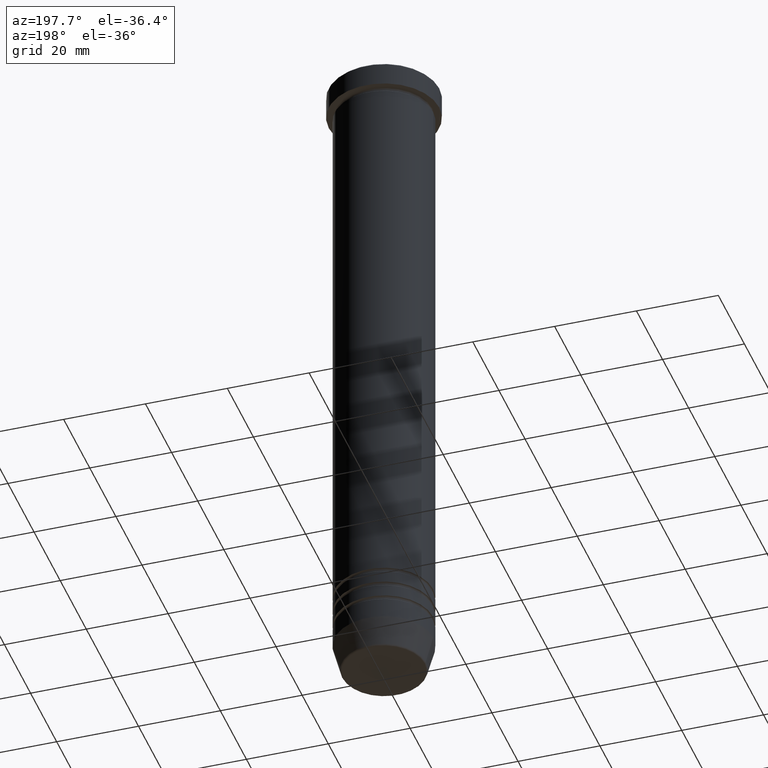
[diagram: clean part render]
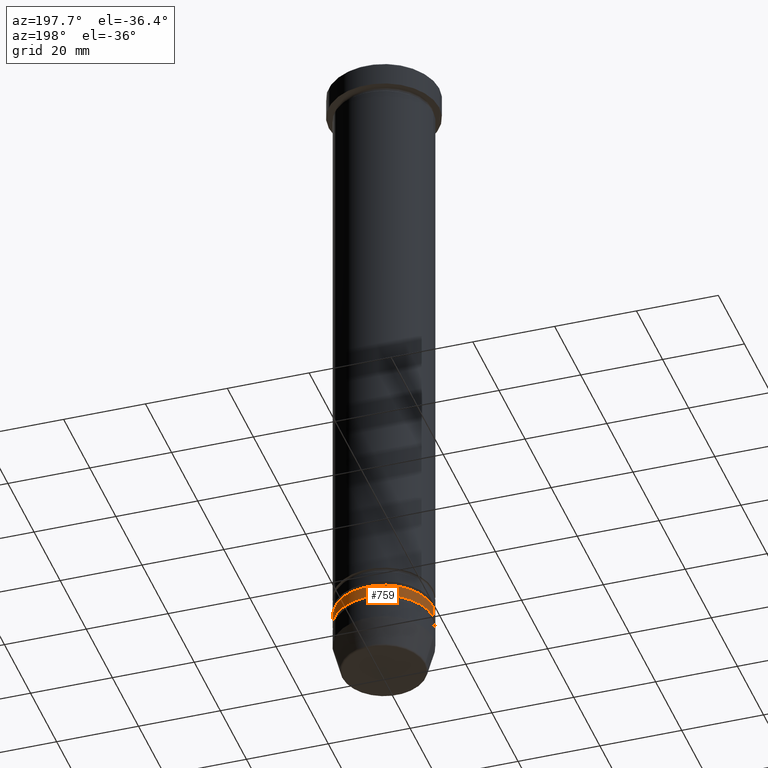
[diagram: same view with one face highlighted and labeled with its STEP entity id]
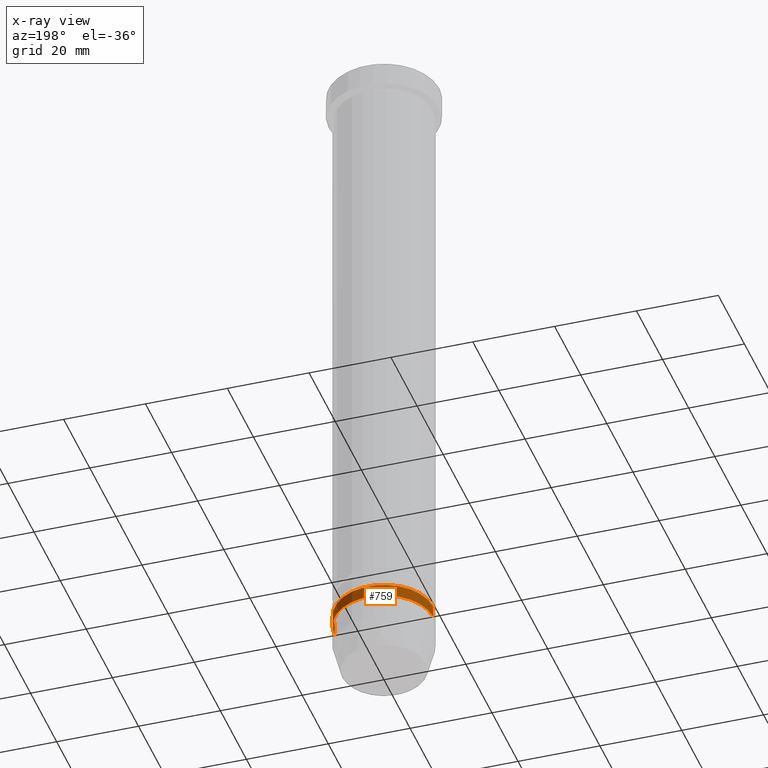
[diagram: x-ray of the same camera — body ghosted, the highlighted face saturated]
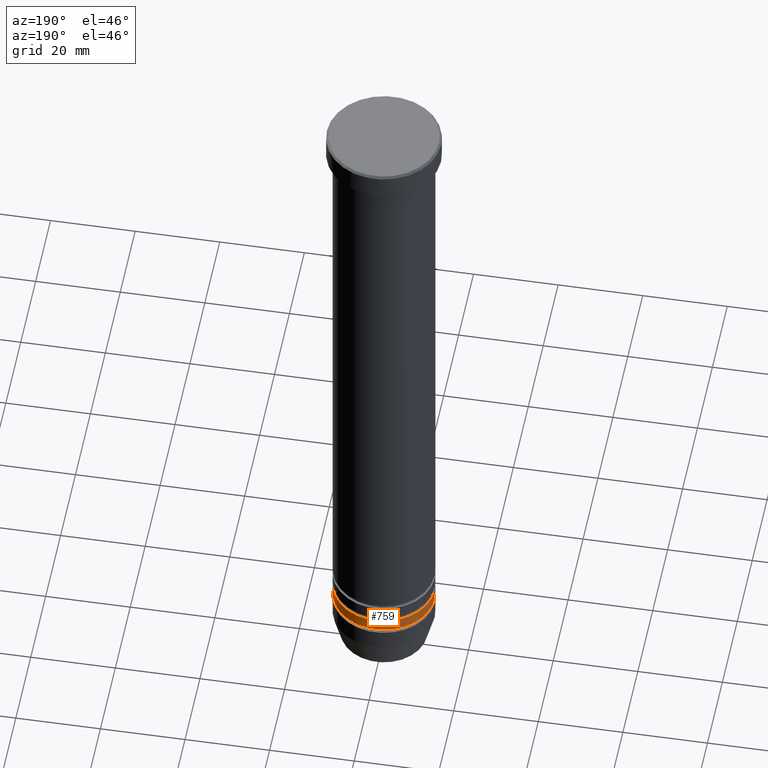
[diagram: same view with one face highlighted and labeled with its STEP entity id]
A machine part, auxiliary view. The second image highlights one B-rep face of the part: STEP entity #759.
The next image is the same camera in x-ray: the body ghosted, the highlighted face saturated — about 0% of this face is hidden behind the body in this view.
A second angle (auxiliary view) of the same face is appended — the face is thin or edge-on in the first view.
In plain terms, the highlighted cylindrical surface (partial cylindrical patch) has radius 12 mm, axis along (-0, -0, 1).
Its self-contained STEP definition (entity closure, byte-faithful):
#27 = CIRCLE ( 'NONE', #474, 12.00000000000000178 ) ;
#45 = CARTESIAN_POINT ( 'NONE',  ( 0.000000000000000000, 0.000000000000000000, -153.0000000000000284 ) ) ;
#46 = VECTOR ( 'NONE', #134, 1000.000000000000000 ) ;
#84 = VERTEX_POINT ( 'NONE', #514 ) ;
#90 = EDGE_CURVE ( 'NONE', #481, #84, #793, .T. ) ;
#134 = DIRECTION ( 'NONE',  ( -0.000000000000000000, -0.000000000000000000, 1.000000000000000000 ) ) ;
#210 = DIRECTION ( 'NONE',  ( -0.000000000000000000, -0.000000000000000000, 1.000000000000000000 ) ) ;
#251 = ORIENTED_EDGE ( 'NONE', *, *, #789, .F. ) ;
#269 = CARTESIAN_POINT ( 'NONE',  ( 0.000000000000000000, 0.000000000000000000, -150.0000000000000284 ) ) ;
#296 = EDGE_LOOP ( 'NONE', ( #556, #777, #491, #251 ) ) ;
#305 = AXIS2_PLACEMENT_3D ( 'NONE', #45, #413, #1115 ) ;
#307 = VERTEX_POINT ( 'NONE', #1000 ) ;
#317 = LINE ( 'NONE', #586, #46 ) ;
#337 = VERTEX_POINT ( 'NONE', #1120 ) ;
#377 = CARTESIAN_POINT ( 'NONE',  ( 0.000000000000000000, 0.000000000000000000, 0.000000000000000000 ) ) ;
#413 = DIRECTION ( 'NONE',  ( -0.000000000000000000, -0.000000000000000000, 1.000000000000000000 ) ) ;
#428 = DIRECTION ( 'NONE',  ( 1.000000000000000000, 0.000000000000000000, 0.000000000000000000 ) ) ;
#474 = AXIS2_PLACEMENT_3D ( 'NONE', #269, #961, #428 ) ;
#478 = DIRECTION ( 'NONE',  ( 1.000000000000000000, 0.000000000000000000, 0.000000000000000000 ) ) ;
#481 = VERTEX_POINT ( 'NONE', #579 ) ;
#491 = ORIENTED_EDGE ( 'NONE', *, *, #498, .F. ) ;
#498 = EDGE_CURVE ( 'NONE', #337, #307, #27, .T. ) ;
#514 = CARTESIAN_POINT ( 'NONE',  ( -11.99999999999999467, 1.469576158976823553E-15, -153.0000000000000284 ) ) ;
#519 = CARTESIAN_POINT ( 'NONE',  ( -11.99999999999999822, 1.469576158976823750E-15, 0.000000000000000000 ) ) ;
#556 = ORIENTED_EDGE ( 'NONE', *, *, #90, .T. ) ;
#579 = CARTESIAN_POINT ( 'NONE',  ( 11.99999999999999467, 0.000000000000000000, -153.0000000000000284 ) ) ;
#586 = CARTESIAN_POINT ( 'NONE',  ( 11.99999999999999822, 0.000000000000000000, 0.000000000000000000 ) ) ;
#671 = VECTOR ( 'NONE', #1016, 1000.000000000000000 ) ;
#759 = ADVANCED_FACE ( 'NONE', ( #903 ), #816, .T. ) ;
#777 = ORIENTED_EDGE ( 'NONE', *, *, #990, .T. ) ;
#789 = EDGE_CURVE ( 'NONE', #481, #337, #317, .T. ) ;
#793 = CIRCLE ( 'NONE', #305, 11.99999999999999467 ) ;
#816 = CYLINDRICAL_SURFACE ( 'NONE', #1031, 11.99999999999999822 ) ;
#903 = FACE_OUTER_BOUND ( 'NONE', #296, .T. ) ;
#961 = DIRECTION ( 'NONE',  ( -0.000000000000000000, -0.000000000000000000, 1.000000000000000000 ) ) ;
#990 = EDGE_CURVE ( 'NONE', #84, #307, #1130, .T. ) ;
#1000 = CARTESIAN_POINT ( 'NONE',  ( -12.00000000000000178, 1.469576158976824144E-15, -150.0000000000000284 ) ) ;
#1016 = DIRECTION ( 'NONE',  ( -0.000000000000000000, -0.000000000000000000, 1.000000000000000000 ) ) ;
#1031 = AXIS2_PLACEMENT_3D ( 'NONE', #377, #210, #478 ) ;
#1115 = DIRECTION ( 'NONE',  ( 1.000000000000000000, 0.000000000000000000, 0.000000000000000000 ) ) ;
#1120 = CARTESIAN_POINT ( 'NONE',  ( 12.00000000000000178, 0.000000000000000000, -150.0000000000000284 ) ) ;
#1130 = LINE ( 'NONE', #519, #671 ) ;